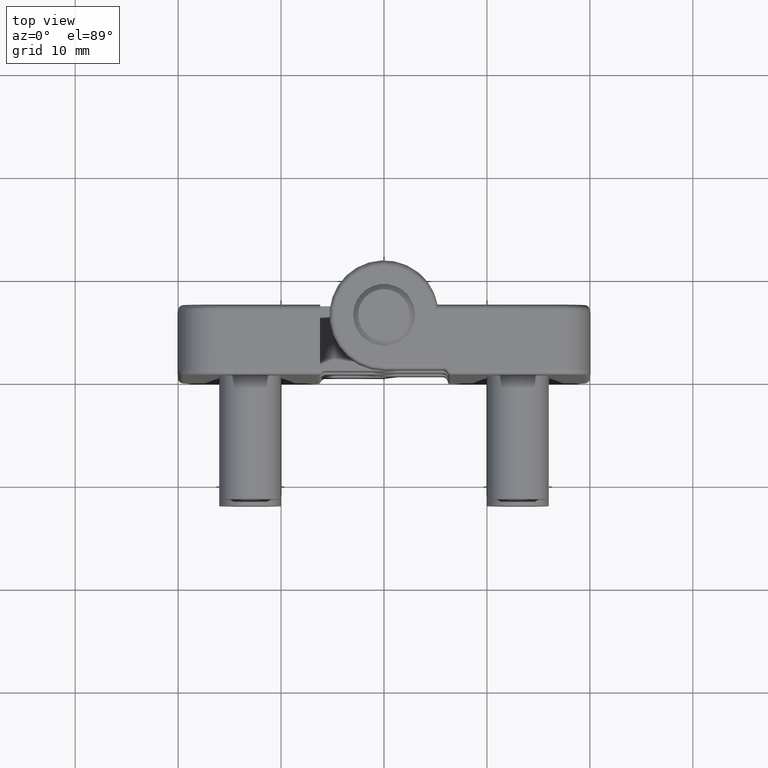
[diagram: clean part render]
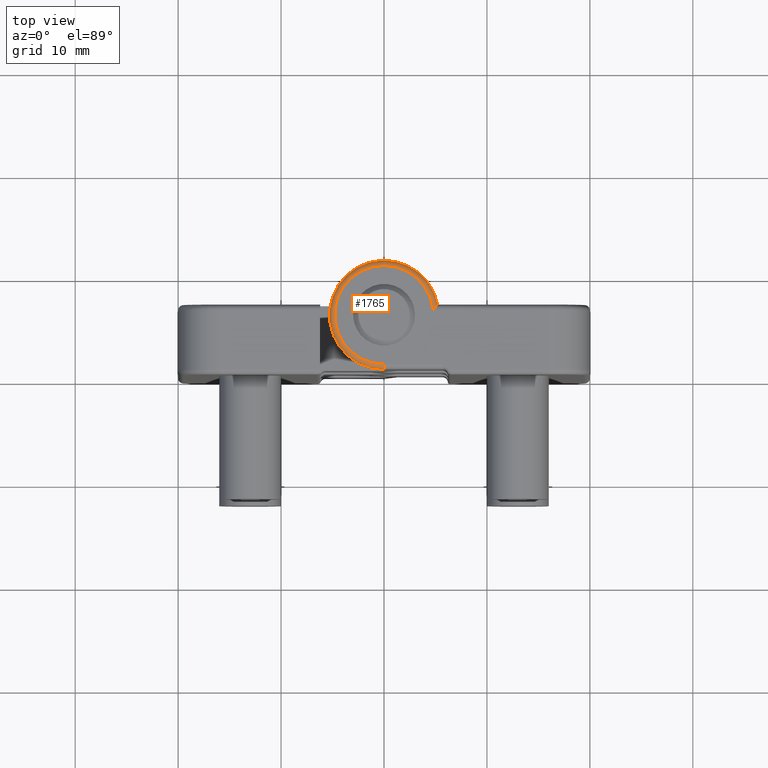
[diagram: same view with one face highlighted and labeled with its STEP entity id]
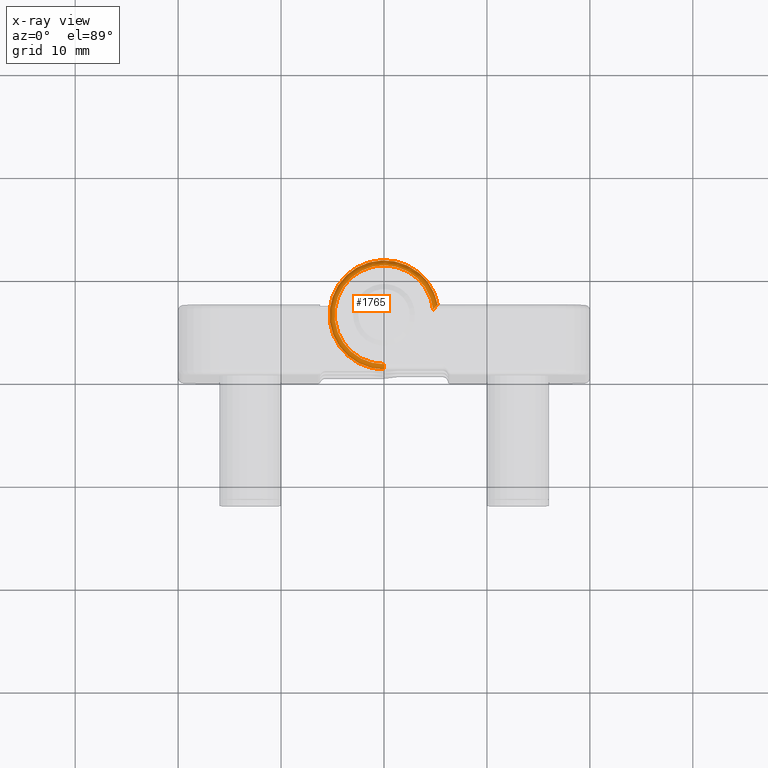
[diagram: x-ray of the same camera — body ghosted, the highlighted face saturated]
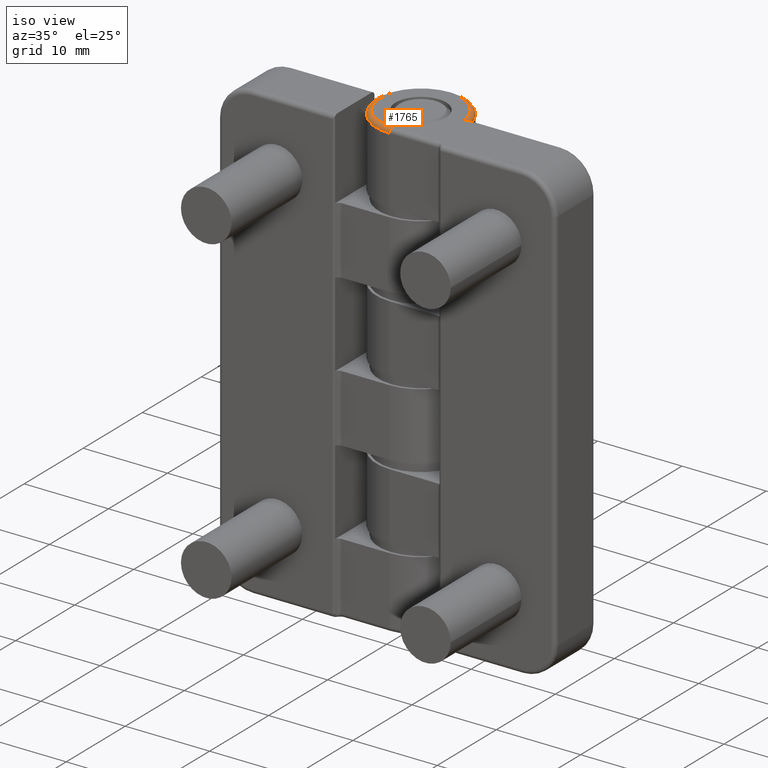
[diagram: same view with one face highlighted and labeled with its STEP entity id]
A machine part, top view. The second image highlights one B-rep face of the part: STEP entity #1765.
The next image is the same camera in x-ray: the body ghosted, the highlighted face saturated — about 0% of this face is hidden behind the body in this view.
A second angle (iso view) of the same face is appended — the face is thin or edge-on in the first view.
In plain terms, the highlighted toroidal blend (fillet) surface has major radius 4.8 mm and minor (blend) radius 0.5 mm.
Its self-contained STEP definition (entity closure, byte-faithful):
#44=TOROIDAL_SURFACE('',#1931,4.8,0.5);
#274=B_SPLINE_CURVE_WITH_KNOTS('',3,(#2980,#2981,#2982,#2983,#2984,#2985,
#2986,#2987,#2988,#2989,#2990,#2991,#2992,#2993),.UNSPECIFIED.,.F.,.F.,
(4,2,2,2,2,2,4),(-0.183819647183971,-0.183395942693736,-0.164071476958545,
-0.145581652226692,-0.124148330889424,-0.107071841582396,-0.0916979713468609),
 .UNSPECIFIED.);
#409=FACE_OUTER_BOUND('',#539,.T.);
#539=EDGE_LOOP('',(#1333,#1334,#1335,#1336));
#698=CIRCLE('',#1916,4.8);
#705=CIRCLE('',#1932,5.3);
#706=CIRCLE('',#1933,0.5);
#840=VERTEX_POINT('',#2938);
#841=VERTEX_POINT('',#2940);
#850=VERTEX_POINT('',#2976);
#851=VERTEX_POINT('',#2977);
#1021=EDGE_CURVE('',#841,#840,#698,.T.);
#1039=EDGE_CURVE('',#850,#851,#705,.T.);
#1040=EDGE_CURVE('',#851,#841,#706,.T.);
#1041=EDGE_CURVE('',#840,#850,#274,.T.);
#1333=ORIENTED_EDGE('',*,*,#1039,.T.);
#1334=ORIENTED_EDGE('',*,*,#1040,.T.);
#1335=ORIENTED_EDGE('',*,*,#1021,.T.);
#1336=ORIENTED_EDGE('',*,*,#1041,.T.);
#1765=ADVANCED_FACE('',(#409),#44,.T.);
#1916=AXIS2_PLACEMENT_3D('',#2941,#2243,#2244);
#1931=AXIS2_PLACEMENT_3D('',#2975,#2284,#2285);
#1932=AXIS2_PLACEMENT_3D('',#2978,#2286,#2287);
#1933=AXIS2_PLACEMENT_3D('',#2979,#2288,#2289);
#2243=DIRECTION('center_axis',(0.,0.,-1.));
#2244=DIRECTION('ref_axis',(-0.77093425312507,0.636914733193141,0.));
#2284=DIRECTION('center_axis',(0.,0.,1.));
#2285=DIRECTION('ref_axis',(1.,0.,0.));
#2286=DIRECTION('center_axis',(0.,0.,1.));
#2287=DIRECTION('ref_axis',(-0.77093425312507,0.636914733193141,0.));
#2288=DIRECTION('center_axis',(-1.,0.,0.));
#2289=DIRECTION('ref_axis',(0.,-1.,0.));
#2938=CARTESIAN_POINT('',(4.77388730491201,6.3,27.));
#2940=CARTESIAN_POINT('',(0.,0.999999999999998,27.));
#2941=CARTESIAN_POINT('Origin',(-3.40610748101056E-16,5.8,27.));
#2975=CARTESIAN_POINT('Origin',(-3.40610748101056E-16,5.8,26.5));
#2976=CARTESIAN_POINT('',(5.20480547186924,6.8,26.5));
#2977=CARTESIAN_POINT('',(0.,0.499999999999998,26.5));
#2978=CARTESIAN_POINT('Origin',(-3.40610748101056E-16,5.8,26.5));
#2979=CARTESIAN_POINT('Origin',(0.,0.999999999999998,26.5));
#2980=CARTESIAN_POINT('Ctrl Pts',(4.77388730491201,6.3,27.));
#2981=CARTESIAN_POINT('Ctrl Pts',(4.77483254128058,6.30104940741862,27.));
#2982=CARTESIAN_POINT('Ctrl Pts',(4.77577762441867,6.30209895639939,26.9999966962323));
#2983=CARTESIAN_POINT('Ctrl Pts',(4.81981861388782,6.35102258130337,26.9996886052055));
#2984=CARTESIAN_POINT('Ctrl Pts',(4.86272226184624,6.39934385297066,26.9925087467286));
#2985=CARTESIAN_POINT('Ctrl Pts',(4.94365613964917,6.49164766808506,26.9642192581465));
#2986=CARTESIAN_POINT('Ctrl Pts',(4.98205950227493,6.53600489001959,26.9436346908906));
#2987=CARTESIAN_POINT('Ctrl Pts',(5.05915306345847,6.62596705660638,26.8835600527074));
#2988=CARTESIAN_POINT('Ctrl Pts',(5.09704453371822,6.67080237656495,26.8414594951512));
#2989=CARTESIAN_POINT('Ctrl Pts',(5.15278764869617,6.73728018118296,26.7477531469968));
#2990=CARTESIAN_POINT('Ctrl Pts',(5.17284343669362,6.76141025188449,26.7002813980685));
#2991=CARTESIAN_POINT('Ctrl Pts',(5.19841312233447,6.79225026051595,26.6006530972941));
#2992=CARTESIAN_POINT('Ctrl Pts',(5.20480547186924,6.8,26.5508345541469));
#2993=CARTESIAN_POINT('Ctrl Pts',(5.20480547186924,6.8,26.5));